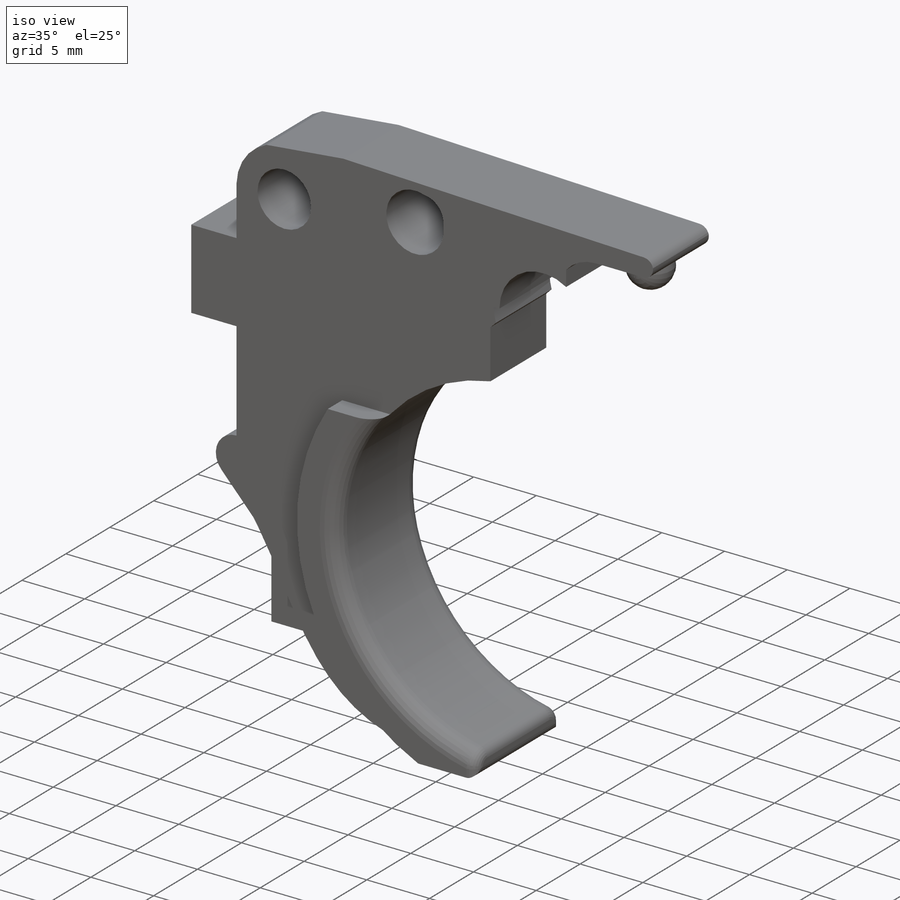
[diagram: iso view]
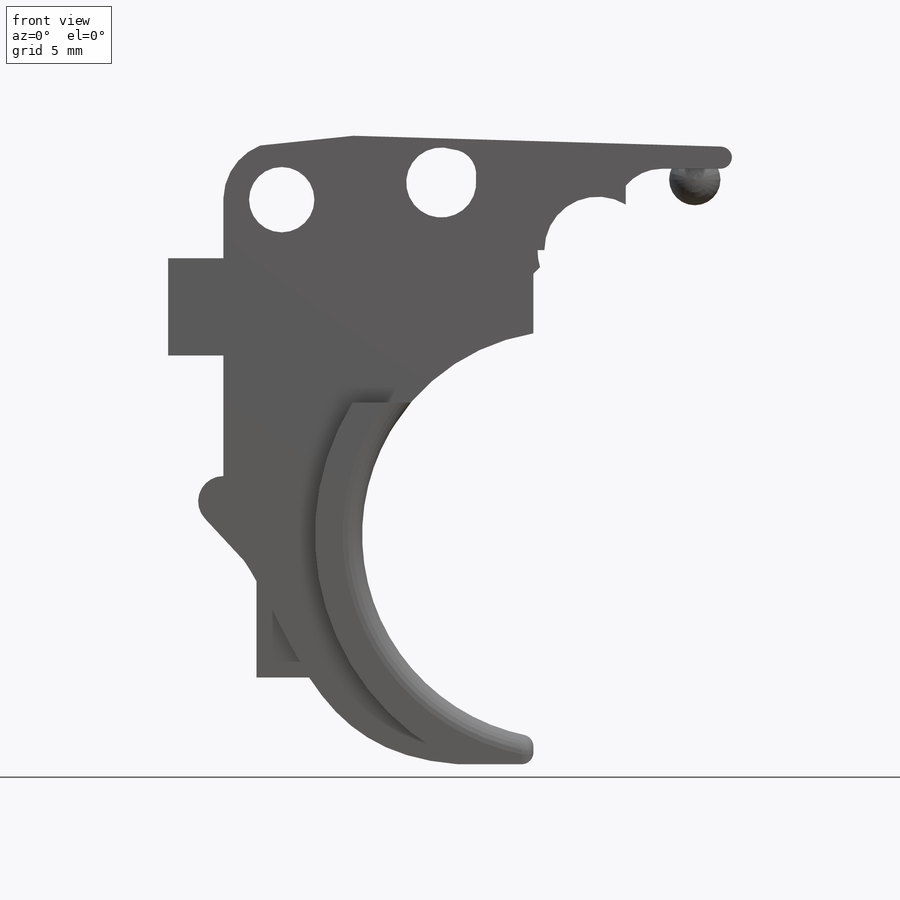
[diagram: front view]
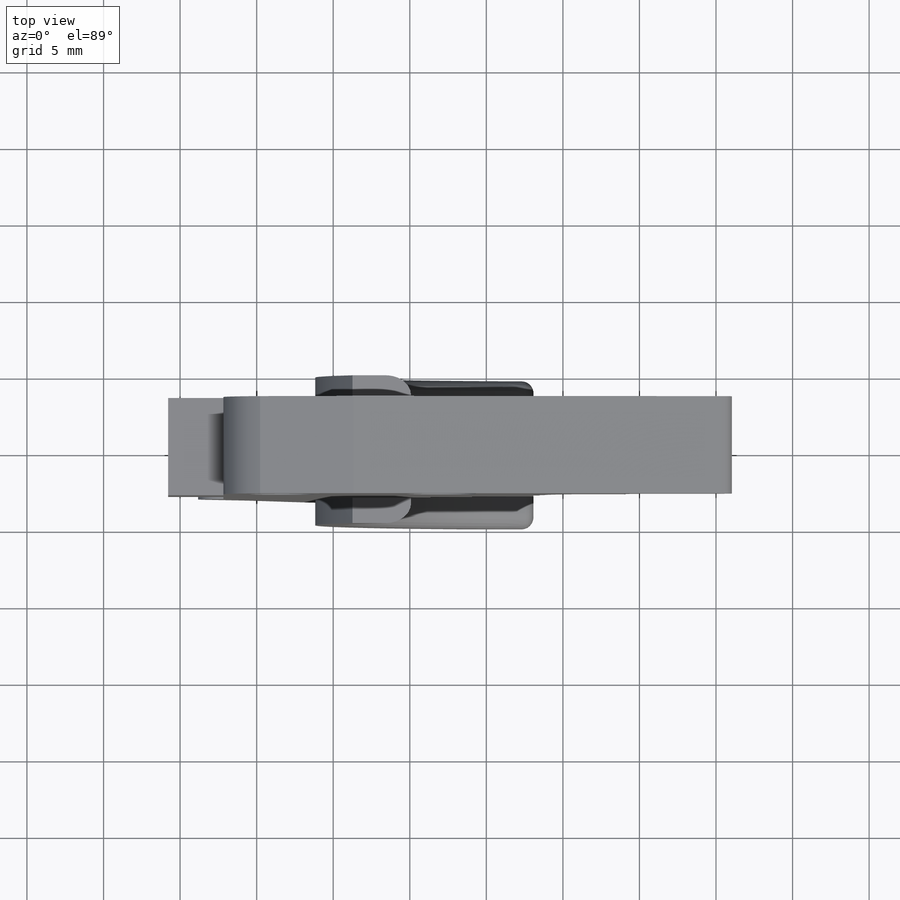
[diagram: top view]
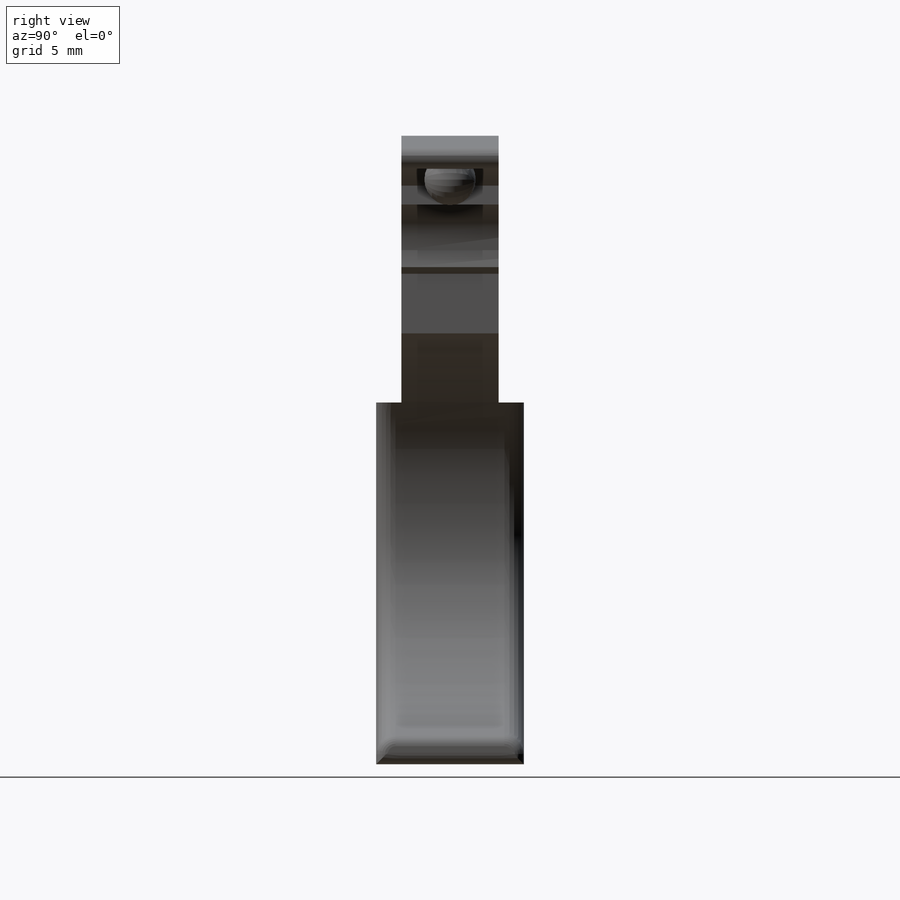
[diagram: right view]
SOLIDWORKS PART (.sldprt)
format: sldprt  version: not decoded by parser v0  size: 623,616 bytes
history: native  units: mm
features: sketch x20, cut_extrude x12, extrude x8, plane x4, mirror x3, fillet x3, material x1, dome x1 (+13 scaffold rows collapsed)
feature tree (65):
  scaffold x13  (default folders/planes/origin — collapsed)
  material  "6061-T6 (SS)"
  sketch  "Sketch2"  dims[D1=41.6814mm D2=34.3408mm]
  extrude  "Boss-Extrude1"  Depth=6.35mm
  sketch  "Sketch3"  dims[D1=14.605mm D2=1.524mm]
  cut_extrude  "Cut-Extrude1"  [1 undecoded]
  sketch  "Sketch4"  dims[c1.D1=4.2672mm c1.D2=2.54mm c1.D3=2.54mm c2.D2=3.5306mm c3.D2=3.81mm]
  cut_extrude  "Cut-Extrude3"  [1 undecoded]
  sketch  "Sketch6"  dims[D3=3.302mm D1=13.208mm D2=1.524mm]
  cut_extrude  "Cut-Extrude4"  [1 undecoded]
  sketch  "Sketch7"  dims[D4=3.048mm D1=2.794mm D2=7.112mm D3=14.224mm D5=8.763mm D6=5.334mm]
  cut_extrude  "Cut-Extrude5"  Depth=6.35mm
  sketch  "Sketch8"  dims[D1=3.048mm D2=2.032mm]
  extrude  "Boss-Extrude2"  Depth=0.00254mm
  sketch  "Sketch9"  dims[D1=13.4112mm D2=8.636mm D3=6.35mm]
  cut_extrude  "Cut-Extrude6"  [1 undecoded]
  sketch  "Sketch10"
  cut_extrude  "Cut-Extrude7"  Depth=0.7112mm
  mirror  "Mirror1"
  sketch  "Sketch11"  dims[D1=3.175mm D2=11.938mm]
  extrude  "Boss-Extrude3"  [1 undecoded]
  mirror  "Mirror2"
  plane  "Plane1"
  sketch  "Sketch14"  dims[D2=3.302mm D1=22.86mm D3=19.05mm]
  extrude  "Boss-Extrude4"  [1 undecoded]
  sketch  "Sketch15"
  cut_extrude  "Cut-Extrude8"  [1 undecoded]
  sketch  "Sketch16"  dims[c1.D1=31.75mm c1.D2=31.75mm c1.D3=31.75mm c2.D2=16.51mm c2.D3=14.478mm c2.D1=0.635mm]
  cut_extrude  "Cut-Extrude9"  [1 undecoded]
  plane  "Plane2"  Offset=2.159mm
  sketch  "Sketch18"  dims[D1=4.572mm D2=3.175mm D3=6.35mm]
  extrude  "Boss-Extrude5"  [1 undecoded]
  sketch  "Sketch19"  dims[D3=~13.344365mm D1=23.622mm D2=3.81mm]
  extrude  "Boss-Extrude6"  Depth=1.651mm
  mirror  "Mirror3"
  fillet  "Fillet6"  Radius=1.27mm
  fillet  "Fillet7"  Radius=0.762mm
  plane  "Plane3"  Offset=0mm
  sketch  "Sketch20"  dims[D1=4.572mm D2=17.78mm]
  cut_extrude  "Cut-Extrude11"  [1 undecoded]
  dome  "Dome1"
  sketch  "Sketch21"
  cut_extrude  "Cut-Extrude12"  [1 undecoded]
  sketch  "Sketch22"
  cut_extrude  "Cut-Extrude13"  [1 undecoded]
  fillet  "Fillet8"  Radius=0.762mm
  plane  "Plane4"
  sketch  "Sketch23"
  extrude  "Boss-Extrude7"  Depth=18.796mm
  sketch  "Sketch24"  dims[D1=7.874mm]
  cut_extrude  "Cut-Extrude14"  [1 undecoded]
  sketch  "Sketch25"  dims[D1=~8.149332mm]
  extrude  "Boss-Extrude8"  [1 undecoded]
decode coverage: 24 of 47 modeling features carry decoded parameters
note: ~ marks probable driven/reference dimensions
note: 14 parameter values undecoded
summary: no parameter record found for 14 features
note: suppression state not decoded; provenance and decode notes live in map.json
